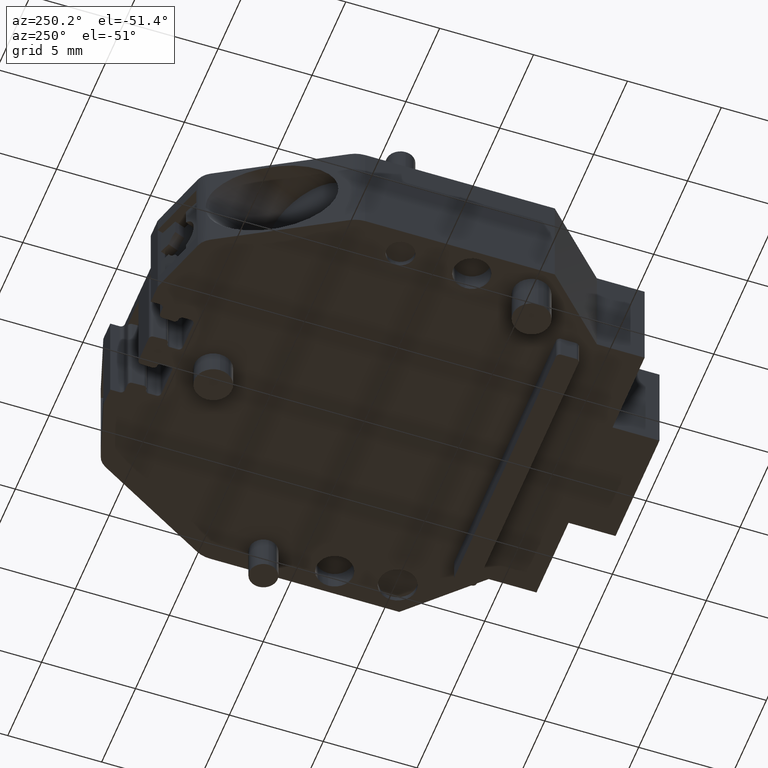
[diagram: clean part render]
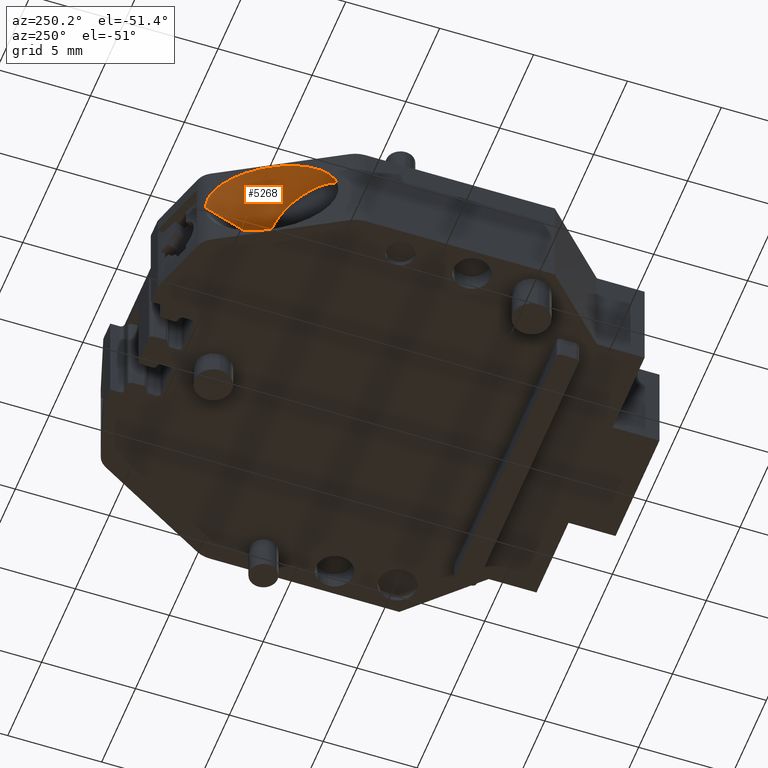
[diagram: same view with one face highlighted and labeled with its STEP entity id]
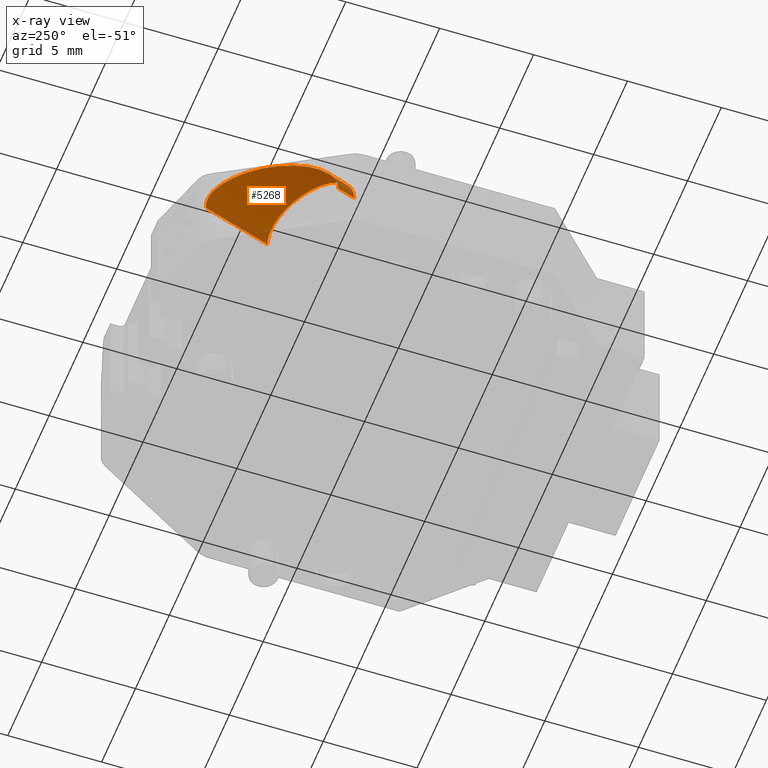
[diagram: x-ray of the same camera — body ghosted, the highlighted face saturated]
A machine part, auxiliary view. The second image highlights one B-rep face of the part: STEP entity #5268.
The next image is the same camera in x-ray: the body ghosted, the highlighted face saturated — about 1% of this face is hidden behind the body in this view.
In plain terms, the highlighted cylindrical surface (partial cylindrical patch) has radius 2.5 mm, axis along (-0.3007, 0.9537, 0).
Its self-contained STEP definition (entity closure, byte-faithful):
#106 = CARTESIAN_POINT ( 'NONE',  ( 280.2786402871705600, 449.8972424968992000, -24.44197339221098600 ) ) ;
#107 = CARTESIAN_POINT ( 'NONE',  ( 283.5428208456532400, 455.5509690692702500, -27.03180405356413400 ) ) ;
#126 = CARTESIAN_POINT ( 'NONE',  ( 280.2786402871705600, 449.8972424968991400, -27.98000000000000000 ) ) ;
#130 = CARTESIAN_POINT ( 'NONE',  ( 282.6327842502125200, 453.9747394492192100, -23.75812955358454900 ) ) ;
#147 = CARTESIAN_POINT ( 'NONE',  ( 284.8527779936534300, 452.0170709118560200, -27.95130176632105500 ) ) ;
#148 = CARTESIAN_POINT ( 'NONE',  ( 284.8545409835354000, 452.0118902297063000, -27.96565061725414800 ) ) ;
#150 = CARTESIAN_POINT ( 'NONE',  ( 284.8545409835354600, 452.0118902297060100, -27.98000000000000000 ) ) ;
#154 = CARTESIAN_POINT ( 'NONE',  ( 284.8492521445687100, 452.0274318921452200, -27.93695451078681600 ) ) ;
#658 = LINE ( 'NONE', #663, #1792 ) ;
#663 = CARTESIAN_POINT ( 'NONE',  ( 278.1275951193848100, 456.7195194426091700, -27.98000000000000000 ) ) ;
#667 = LINE ( 'NONE', #681, #1779 ) ;
#680 = DIRECTION ( 'NONE',  ( -0.3007044655851190400, 0.9537173713302951100, 0.0000000000000000000 ) ) ;
#681 = CARTESIAN_POINT ( 'NONE',  ( 282.8961819760363000, 458.2230417705347900, -27.98000000000000000 ) ) ;
#697 = DIRECTION ( 'NONE',  ( -0.3007044655851190400, 0.9537173713302951100, 0.0000000000000000000 ) ) ;
#1304 = EDGE_CURVE ( 'NONE', #4481, #3400, #2725, .T. ) ;
#1337 = EDGE_CURVE ( 'NONE', #3400, #4484, #2721, .T. ) ;
#1363 = EDGE_CURVE ( 'NONE', #4444, #4496, #2727, .T. ) ;
#1393 = EDGE_CURVE ( 'NONE', #4449, #4496, #4979, .T. ) ;
#1584 = ORIENTED_EDGE ( 'NONE', *, *, #4959, .T. ) ;
#1585 = ORIENTED_EDGE ( 'NONE', *, *, #4948, .F. ) ;
#1586 = ORIENTED_EDGE ( 'NONE', *, *, #1363, .T. ) ;
#1589 = ORIENTED_EDGE ( 'NONE', *, *, #1393, .F. ) ;
#1779 = VECTOR ( 'NONE', #680, 1000.000000000000100 ) ;
#1792 = VECTOR ( 'NONE', #697, 1000.000000000000100 ) ;
#1899 = AXIS2_PLACEMENT_3D ( 'NONE', #3594, #3582, #3615 ) ;
#1925 = EDGE_LOOP ( 'NONE', ( #1585, #4810, #4835, #1584, #1586, #1589 ) ) ;
#2185 = CARTESIAN_POINT ( 'NONE',  ( 284.8492521445687100, 452.0274318921452200, -27.93695451078681600 ) ) ;
#2226 = CARTESIAN_POINT ( 'NONE',  ( 280.2786402871705600, 449.8972424968991400, -27.98000000000000000 ) ) ;
#2234 = CARTESIAN_POINT ( 'NONE',  ( 280.5804361445147500, 448.9400636562572200, -27.98000000000000000 ) ) ;
#2242 = CARTESIAN_POINT ( 'NONE',  ( 283.6803376159915600, 455.7360056894551700, -27.98000000000000000 ) ) ;
#2258 = CARTESIAN_POINT ( 'NONE',  ( 283.5428208456532400, 455.5509690692702500, -27.03180405356413400 ) ) ;
#2268 = CARTESIAN_POINT ( 'NONE',  ( 284.8545409835354600, 452.0118902297060100, -27.98000000000000000 ) ) ;
#2431 = CARTESIAN_POINT ( 'NONE',  ( 283.5428208456532400, 455.5509690692702500, -27.03180405356413400 ) ) ;
#2433 = CARTESIAN_POINT ( 'NONE',  ( 283.6803376159915600, 455.7360056894551700, -27.98000000000000000 ) ) ;
#2461 = CARTESIAN_POINT ( 'NONE',  ( 283.6673635588238700, 455.7229853295687600, -27.65213675031655800 ) ) ;
#2462 = CARTESIAN_POINT ( 'NONE',  ( 283.6191780985237200, 455.6656451189232400, -27.33391149787147300 ) ) ;
#2469 = CARTESIAN_POINT ( 'NONE',  ( 283.6803376159916800, 455.7360056894552300, -27.81450927199903600 ) ) ;
#2473 = CARTESIAN_POINT ( 'NONE',  ( 283.5831247022008500, 455.6207773965518900, -27.17678911031030600 ) ) ;
#2721 =( BOUNDED_CURVE ( )  B_SPLINE_CURVE ( 3, ( #154, #147, #148, #150 ),
 .UNSPECIFIED., .F., .T. ) 
 B_SPLINE_CURVE_WITH_KNOTS ( ( 4, 4 ),
 ( 3.124373607021977400, 3.141592653589793100 ),
 .UNSPECIFIED. ) 
 CURVE ( )  GEOMETRIC_REPRESENTATION_ITEM ( )  RATIONAL_B_SPLINE_CURVE ( ( 1.000000000000000000, 0.9999752921888950300, 0.9999752921888950300, 1.000000000000000000 ) ) 
 REPRESENTATION_ITEM ( '' )  );
#2725 =( BOUNDED_CURVE ( )  B_SPLINE_CURVE ( 3, ( #4341, #4318, #4357, #4354 ),
 .UNSPECIFIED., .F., .T. ) 
 B_SPLINE_CURVE_WITH_KNOTS ( ( 4, 4 ),
 ( 3.141592653589793100, 6.265966260611770100 ),
 .UNSPECIFIED. ) 
 CURVE ( )  GEOMETRIC_REPRESENTATION_ITEM ( )  RATIONAL_B_SPLINE_CURVE ( ( 1.000000000000000000, 0.3390729446149385300, 0.3390729446149385300, 1.000000000000000000 ) ) 
 REPRESENTATION_ITEM ( '' )  );
#2727 =( BOUNDED_CURVE ( )  B_SPLINE_CURVE ( 3, ( #126, #106, #130, #107 ),
 .UNSPECIFIED., .F., .T. ) 
 B_SPLINE_CURVE_WITH_KNOTS ( ( 4, 4 ),
 ( 3.141592653589793100, 5.894169028476608400 ),
 .UNSPECIFIED. ) 
 CURVE ( )  GEOMETRIC_REPRESENTATION_ITEM ( )  RATIONAL_B_SPLINE_CURVE ( ( 1.000000000000000000, 0.4621893152001637600, 0.4621893152001637600, 1.000000000000000000 ) ) 
 REPRESENTATION_ITEM ( '' )  );
#3400 = VERTEX_POINT ( 'NONE', #2185 ) ;
#3582 = DIRECTION ( 'NONE',  ( -0.3007044655851190400, 0.9537173713302952200, 0.0000000000000000000 ) ) ;
#3583 = CYLINDRICAL_SURFACE ( 'NONE', #1899, 2.500000000000009800 ) ;
#3594 = CARTESIAN_POINT ( 'NONE',  ( 280.5118885477105600, 457.4712806065720100, -27.98000000000000000 ) ) ;
#3613 = FACE_OUTER_BOUND ( 'NONE', #1925, .T. ) ;
#3615 = DIRECTION ( 'NONE',  ( -0.9537173713302944400, -0.3007044655851209300, 0.0000000000000000000 ) ) ;
#4318 = CARTESIAN_POINT ( 'NONE',  ( 280.5804361445147500, 448.9400636562572800, -23.06481899364882400 ) ) ;
#4341 = CARTESIAN_POINT ( 'NONE',  ( 280.5804361445147500, 448.9400636562572200, -27.98000000000000000 ) ) ;
#4354 = CARTESIAN_POINT ( 'NONE',  ( 284.8492521445687100, 452.0274318921452200, -27.93695451078681600 ) ) ;
#4357 = CARTESIAN_POINT ( 'NONE',  ( 284.7769923407059900, 451.9751708850710700, -23.02250215111604700 ) ) ;
#4444 = VERTEX_POINT ( 'NONE', #2226 ) ;
#4449 = VERTEX_POINT ( 'NONE', #2242 ) ;
#4481 = VERTEX_POINT ( 'NONE', #2234 ) ;
#4484 = VERTEX_POINT ( 'NONE', #2268 ) ;
#4496 = VERTEX_POINT ( 'NONE', #2258 ) ;
#4810 = ORIENTED_EDGE ( 'NONE', *, *, #1337, .F. ) ;
#4835 = ORIENTED_EDGE ( 'NONE', *, *, #1304, .F. ) ;
#4948 = EDGE_CURVE ( 'NONE', #4484, #4449, #667, .T. ) ;
#4959 = EDGE_CURVE ( 'NONE', #4481, #4444, #658, .T. ) ;
#4979 = B_SPLINE_CURVE_WITH_KNOTS ( 'NONE', 3,
 ( #2433, #2469, #2461, #2462, #2473, #2431 ),
 .UNSPECIFIED., .F., .F.,
 ( 4, 2, 4 ),
 ( 0.0009820749612438307200, 0.001474071938999943700, 0.001966068916756056600 ),
 .UNSPECIFIED. ) ;
#5268 = ADVANCED_FACE ( 'NONE', ( #3613 ), #3583, .F. ) ;